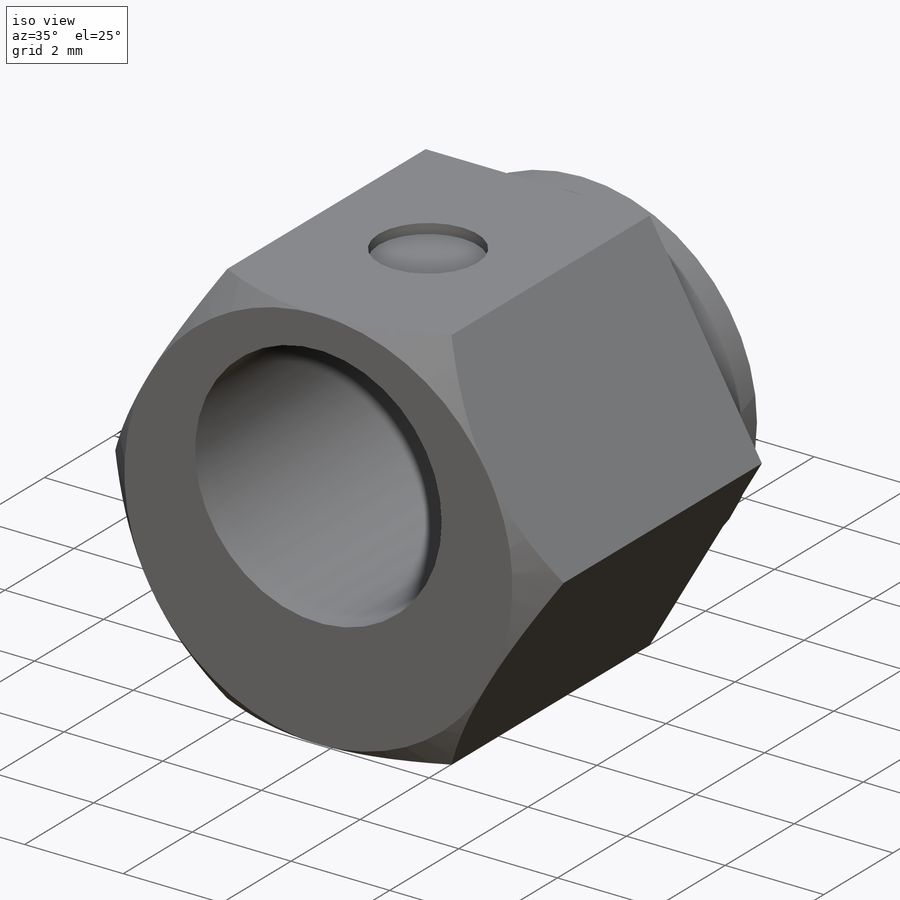
[diagram: iso view]
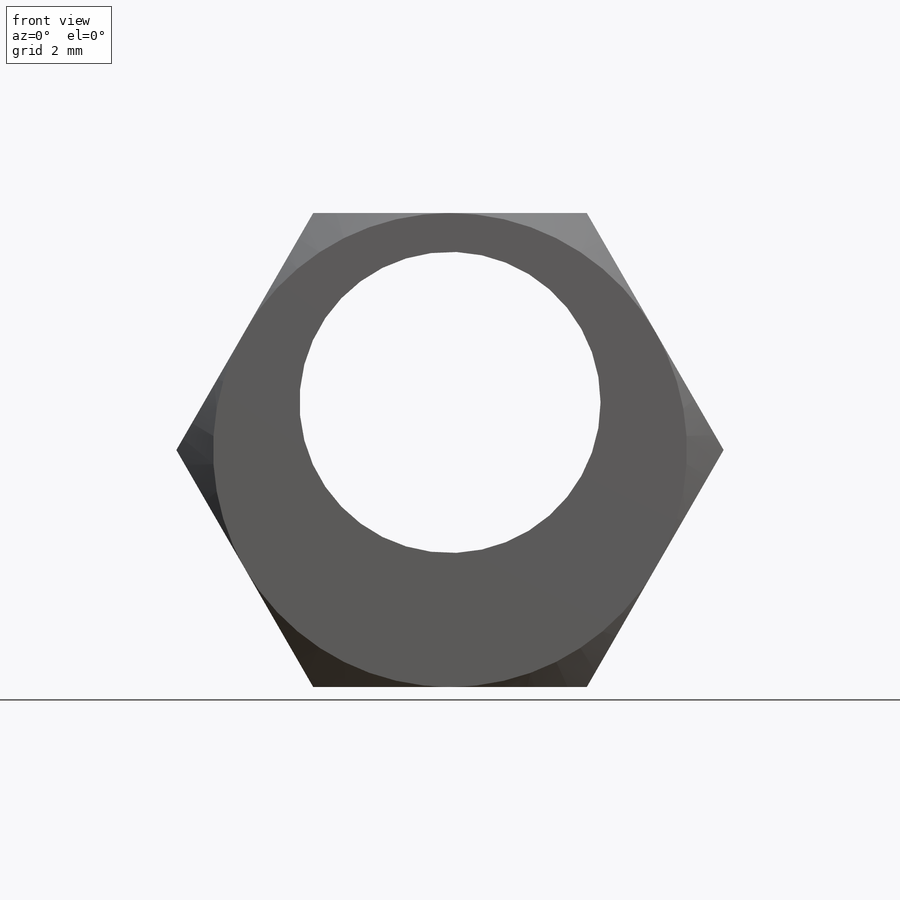
[diagram: front view]
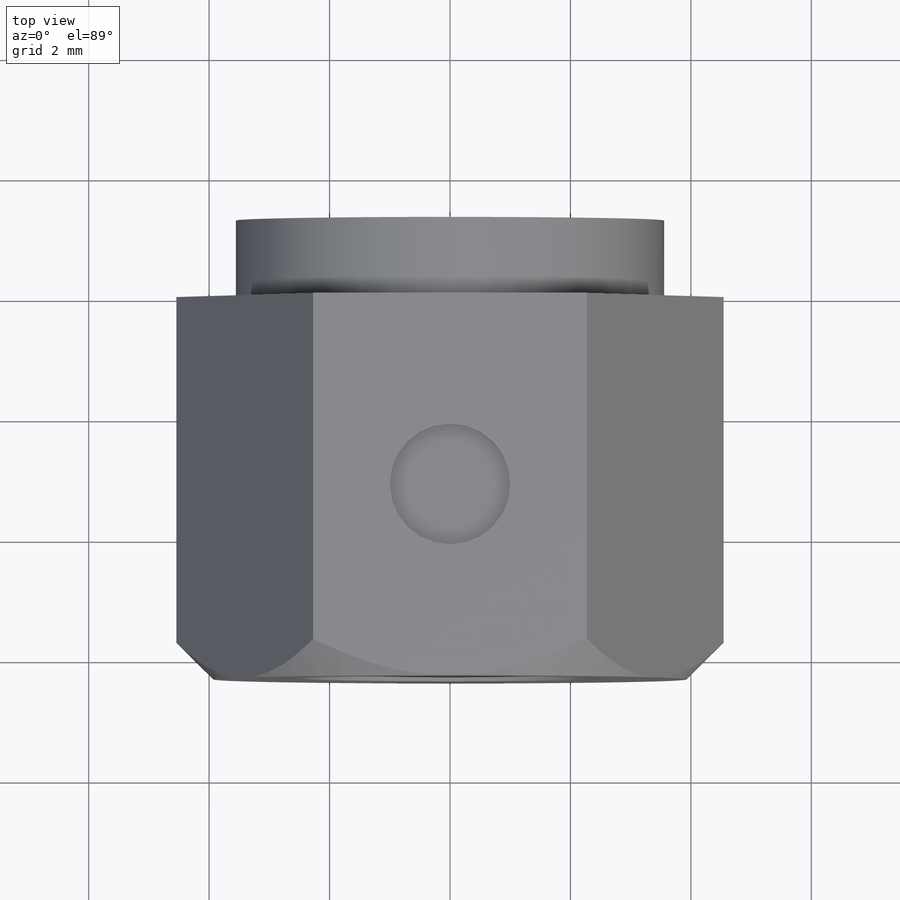
[diagram: top view]
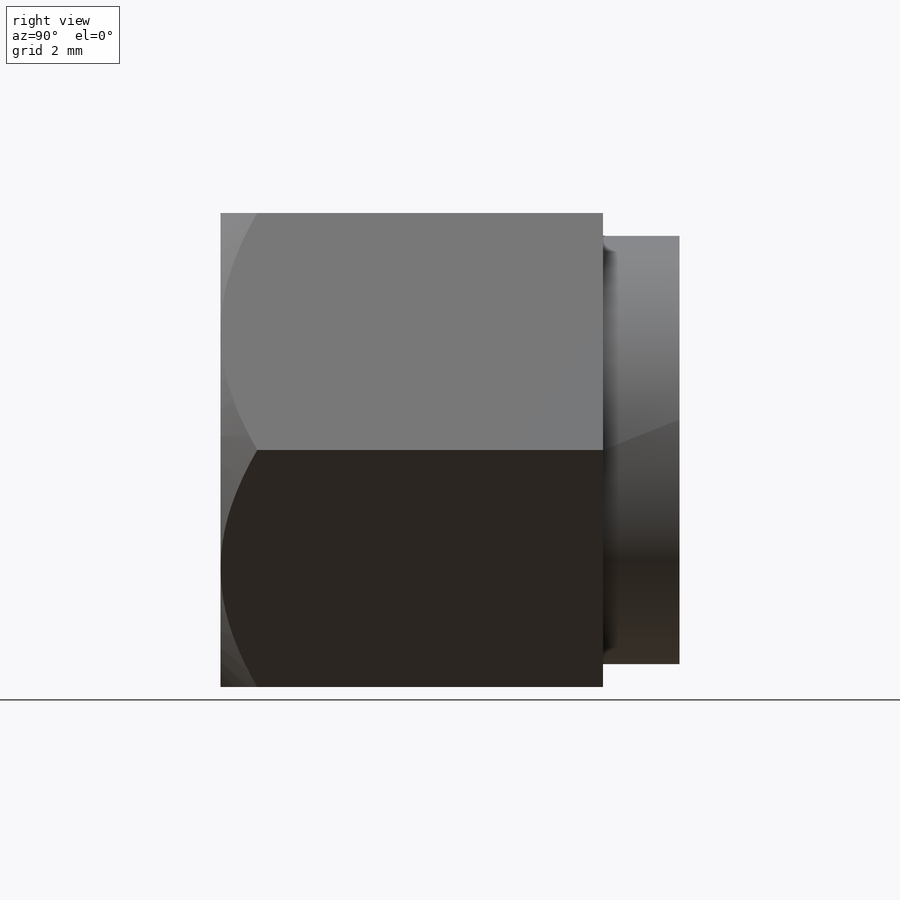
[diagram: right view]
SOLIDWORKS PART (.sldprt)
format: sldprt  version: not decoded by parser v0  size: 221,696 bytes
history: native  units: mm
features: sketch x5, plane x4, extrude x2, cut_extrude x2, material x1, cut_revolve x1 + 2 further entries (+8 scaffold rows collapsed)
feature tree (25):
  scaffold x8  (default folders/planes/origin — collapsed)
  material  "1.5714 (16NiCr4)"
  "SurfaceBodyFolder1"
  "SolidBodyFolder1"
  plane  "Plane1"
  plane  "Plane2"
  plane  "Plane3"
  sketch  "Sketch1"  dims[D1=7.11mm D3=5.0mm D2=0.79mm]
  extrude  "Extrude1"  Depth=1.27mm
  sketch  "Sketch2"  dims[D1=7.87mm]
  extrude  "ICE1"  Depth=6.35mm
  sketch  "Sketch3"  dims[D1=5.0mm D2=0.79mm]
  cut_extrude  "ICE2"  [1 undecoded]
  sketch  "Sketch4"  dims[D1=2.0mm]
  cut_extrude  "ICE3"  Depth=0.2mm
  plane  "Plane4"
  sketch  "Sketch5"  dims[c1.D1=~1.762895mm c2.D1=45.0deg c2.D2=~5.103445mm]
  cut_revolve  "RevCut1"  Angle=360deg
decode coverage: 9 of 10 modeling features carry decoded parameters; 2 rows unclassified (native names shown)
note: ~ marks probable driven/reference dimensions
note: 1 parameter value undecoded
note: suppression state not decoded; provenance and decode notes live in map.json
